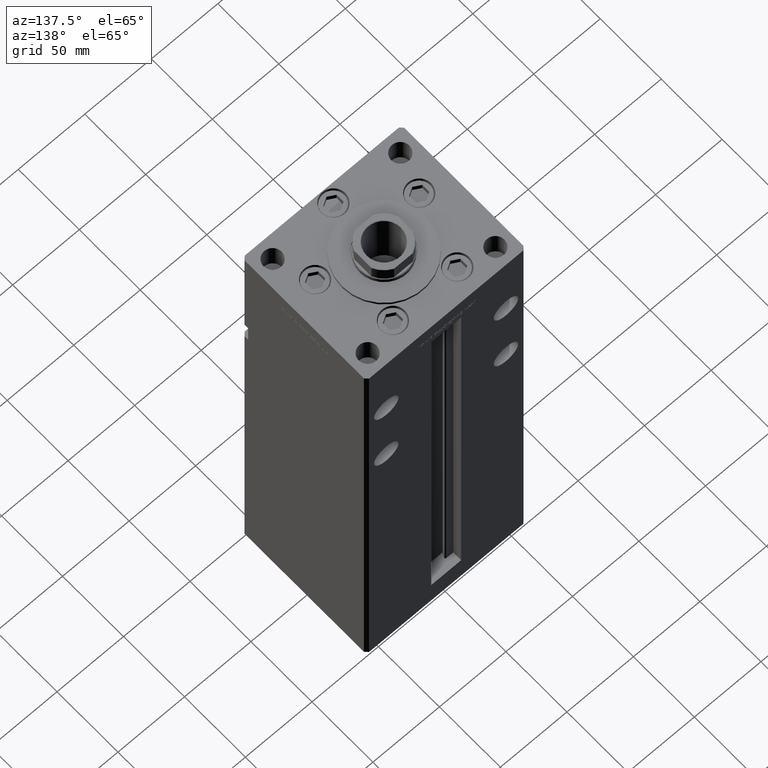
[diagram: clean part render]
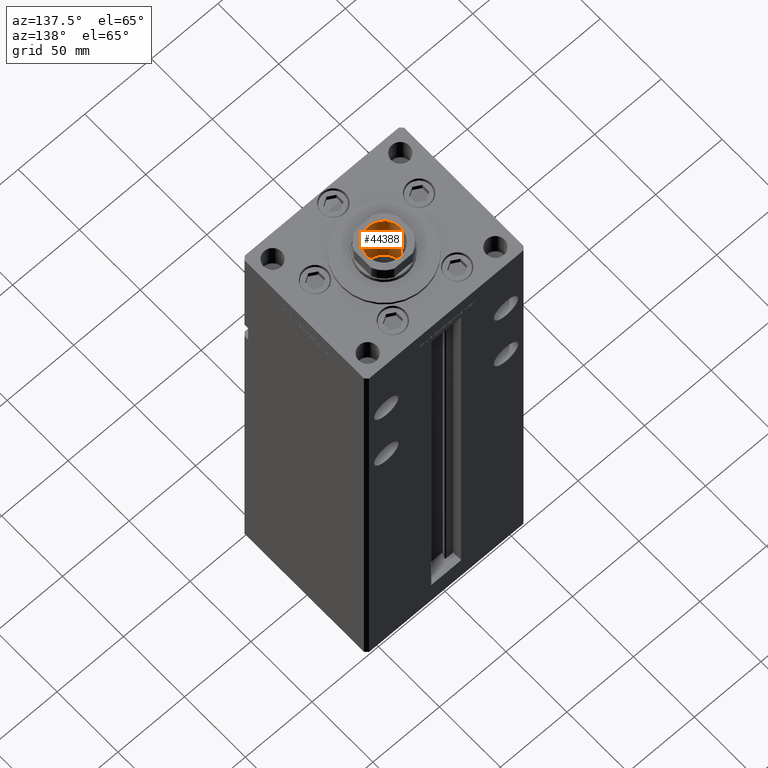
[diagram: same view with one face highlighted and labeled with its STEP entity id]
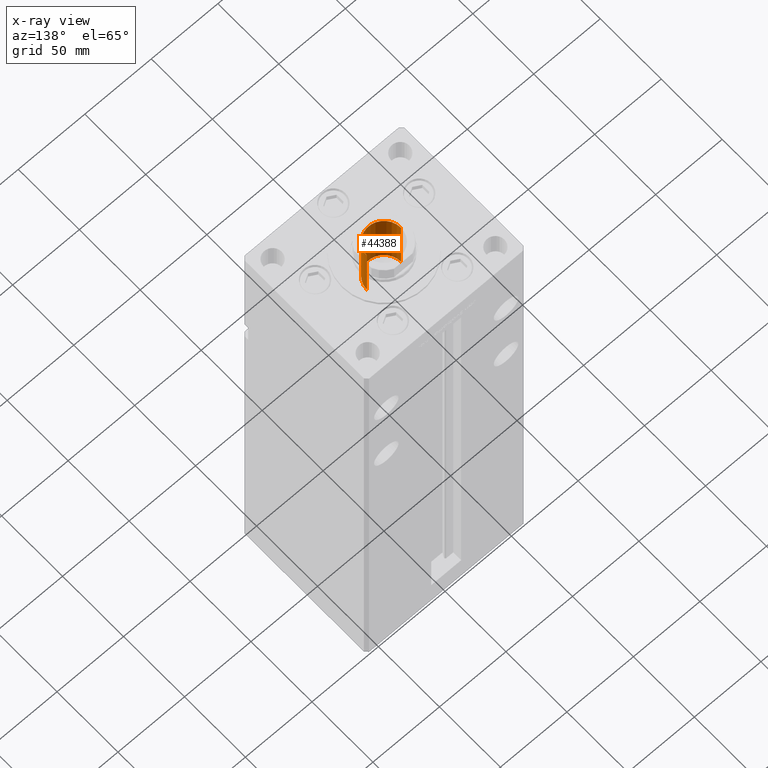
[diagram: x-ray of the same camera — body ghosted, the highlighted face saturated]
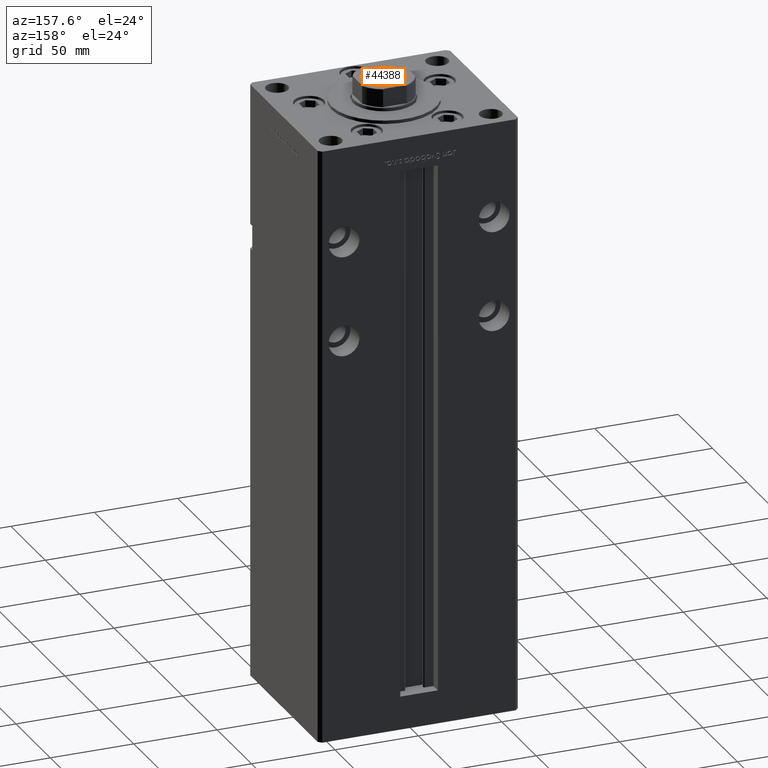
[diagram: same view with one face highlighted and labeled with its STEP entity id]
A machine part, auxiliary view. The second image highlights one B-rep face of the part: STEP entity #44388.
The next image is the same camera in x-ray: the body ghosted, the highlighted face saturated — about 0% of this face is hidden behind the body in this view.
A second angle (auxiliary view) of the same face is appended — the face is thin or edge-on in the first view.
In plain terms, the highlighted cylindrical surface (edge-blend (fillet) strip) has radius 12.75 mm, axis along (0, 0, 1).
Its self-contained STEP definition (entity closure, byte-faithful):
#2324 = ORIENTED_EDGE ( 'NONE', *, *, #24580, .F. ) ;
#2327 = CIRCLE ( 'NONE', #41718, 12.74999999999999112 ) ;
#3209 = CYLINDRICAL_SURFACE ( 'NONE', #9631, 12.74999999999999467 ) ;
#4597 = LINE ( 'NONE', #33844, #6235 ) ;
#6235 = VECTOR ( 'NONE', #12897, 1000.000000000000000 ) ;
#7244 = DIRECTION ( 'NONE',  ( -0.000000000000000000, -0.000000000000000000, 1.000000000000000000 ) ) ;
#9631 = AXIS2_PLACEMENT_3D ( 'NONE', #19324, #7244, #35150 ) ;
#11757 = ORIENTED_EDGE ( 'NONE', *, *, #46571, .T. ) ;
#12897 = DIRECTION ( 'NONE',  ( -0.000000000000000000, -0.000000000000000000, 1.000000000000000000 ) ) ;
#14400 = LINE ( 'NONE', #14927, #28334 ) ;
#14927 = CARTESIAN_POINT ( 'NONE',  ( -12.74999999999999467, 1.561424668912874519E-15, 339.2500000000000000 ) ) ;
#14973 = DIRECTION ( 'NONE',  ( 1.000000000000000000, 0.000000000000000000, 0.000000000000000000 ) ) ;
#15282 = CARTESIAN_POINT ( 'NONE',  ( -12.74999999999999112, 1.561424668912874125E-15, 294.2500000000000000 ) ) ;
#19324 = CARTESIAN_POINT ( 'NONE',  ( 0.000000000000000000, 0.000000000000000000, 339.2500000000000000 ) ) ;
#20587 = VERTEX_POINT ( 'NONE', #33383 ) ;
#24580 = EDGE_CURVE ( 'NONE', #27939, #20587, #2327, .T. ) ;
#26533 = CARTESIAN_POINT ( 'NONE',  ( 0.000000000000000000, 0.000000000000000000, 294.2500000000000000 ) ) ;
#27939 = VERTEX_POINT ( 'NONE', #15282 ) ;
#28334 = VECTOR ( 'NONE', #39597, 1000.000000000000000 ) ;
#28941 = CARTESIAN_POINT ( 'NONE',  ( 0.000000000000000000, 0.000000000000000000, 338.9500000000000455 ) ) ;
#29501 = EDGE_LOOP ( 'NONE', ( #2324, #38479, #11757, #50817 ) ) ;
#30723 = VERTEX_POINT ( 'NONE', #40840 ) ;
#31289 = CARTESIAN_POINT ( 'NONE',  ( -12.74999999999999467, 1.561424668912874519E-15, 338.9500000000000455 ) ) ;
#31962 = AXIS2_PLACEMENT_3D ( 'NONE', #28941, #36989, #33498 ) ;
#33383 = CARTESIAN_POINT ( 'NONE',  ( 12.74999999999999112, 0.000000000000000000, 294.2500000000000000 ) ) ;
#33498 = DIRECTION ( 'NONE',  ( 1.000000000000000000, 0.000000000000000000, 0.000000000000000000 ) ) ;
#33844 = CARTESIAN_POINT ( 'NONE',  ( 12.74999999999999467, 0.000000000000000000, 339.2500000000000000 ) ) ;
#35150 = DIRECTION ( 'NONE',  ( 1.000000000000000000, 0.000000000000000000, 0.000000000000000000 ) ) ;
#35418 = EDGE_CURVE ( 'NONE', #27939, #45799, #14400, .T. ) ;
#36989 = DIRECTION ( 'NONE',  ( 0.000000000000000000, 0.000000000000000000, 1.000000000000000000 ) ) ;
#38479 = ORIENTED_EDGE ( 'NONE', *, *, #35418, .T. ) ;
#39597 = DIRECTION ( 'NONE',  ( -0.000000000000000000, -0.000000000000000000, 1.000000000000000000 ) ) ;
#40840 = CARTESIAN_POINT ( 'NONE',  ( 12.74999999999999467, 0.000000000000000000, 338.9500000000000455 ) ) ;
#41718 = AXIS2_PLACEMENT_3D ( 'NONE', #26533, #47168, #14973 ) ;
#42253 = CIRCLE ( 'NONE', #31962, 12.74999999999999467 ) ;
#43715 = FACE_OUTER_BOUND ( 'NONE', #29501, .T. ) ;
#44388 = ADVANCED_FACE ( 'NONE', ( #43715 ), #3209, .F. ) ;
#45388 = EDGE_CURVE ( 'NONE', #20587, #30723, #4597, .T. ) ;
#45799 = VERTEX_POINT ( 'NONE', #31289 ) ;
#46571 = EDGE_CURVE ( 'NONE', #45799, #30723, #42253, .T. ) ;
#47168 = DIRECTION ( 'NONE',  ( -0.000000000000000000, -0.000000000000000000, 1.000000000000000000 ) ) ;
#50817 = ORIENTED_EDGE ( 'NONE', *, *, #45388, .F. ) ;